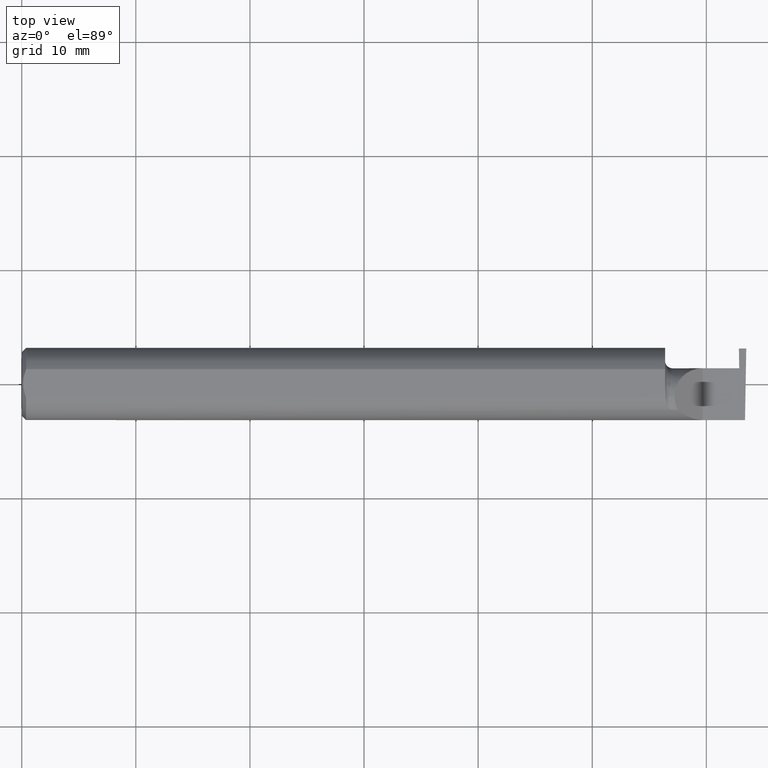
[diagram: clean part render]
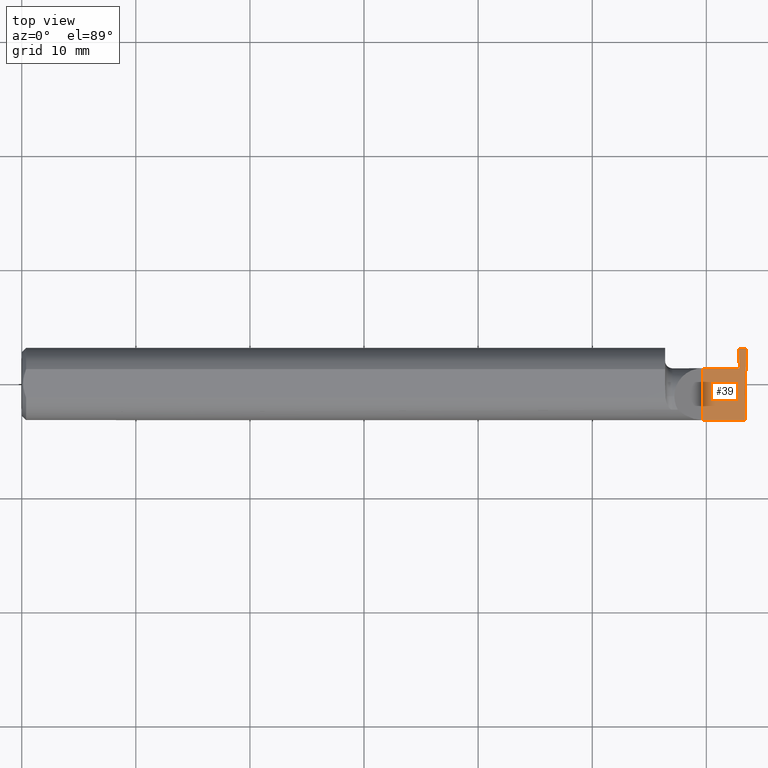
[diagram: same view with one face highlighted and labeled with its STEP entity id]
A machine part, top view. The second image highlights one B-rep face of the part: STEP entity #39.
In plain terms, the highlighted planar face has unit normal (-0, 0, -1).
Its self-contained STEP definition (entity closure, byte-faithful):
#12 = VERTEX_POINT ( 'NONE', #109 ) ;
#25 = DIRECTION ( 'NONE',  ( 1.000000000000000000, 0.000000000000000000, 0.000000000000000000 ) ) ;
#26 = ORIENTED_EDGE ( 'NONE', *, *, #778, .F. ) ;
#33 = DIRECTION ( 'NONE',  ( -0.000000000000000000, 1.000000000000000000, -0.000000000000000000 ) ) ;
#39 = ADVANCED_FACE ( 'NONE', ( #481 ), #469, .F. ) ;
#50 = VECTOR ( 'NONE', #300, 39.37007874015748854 ) ;
#60 = CARTESIAN_POINT ( 'NONE',  ( 2.494380489674781209, -0.1999019447116721915, 6.881915332554903690E-19 ) ) ;
#62 = CARTESIAN_POINT ( 'NONE',  ( 2.500000000000000444, 0.1221499999999999808, 1.947508823608312588E-17 ) ) ;
#89 = EDGE_CURVE ( 'NONE', #559, #425, #421, .T. ) ;
#109 = CARTESIAN_POINT ( 'NONE',  ( 2.350000000000000089, 0.05414999999999988572, 1.836970198721028825E-17 ) ) ;
#120 = DIRECTION ( 'NONE',  ( -1.224646799147352221E-16, 0.000000000000000000, -1.000000000000000000 ) ) ;
#157 = LINE ( 'NONE', #403, #316 ) ;
#171 = LINE ( 'NONE', #496, #367 ) ;
#190 = VECTOR ( 'NONE', #463, 39.37007874015748143 ) ;
#196 = ORIENTED_EDGE ( 'NONE', *, *, #401, .F. ) ;
#217 = LINE ( 'NONE', #534, #432 ) ;
#219 = DIRECTION ( 'NONE',  ( -1.000000000000000000, 1.290958279323718807E-16, 1.224646799147352221E-16 ) ) ;
#237 = EDGE_CURVE ( 'NONE', #550, #258, #457, .T. ) ;
#238 = CARTESIAN_POINT ( 'NONE',  ( 2.474499999999999922, 0.1221499999999999808, -3.306546357697866753E-19 ) ) ;
#258 = VERTEX_POINT ( 'NONE', #599 ) ;
#279 = CARTESIAN_POINT ( 'NONE',  ( 2.474499999999999922, 0.05415000000000001062, 3.429016444442839995E-17 ) ) ;
#294 = EDGE_CURVE ( 'NONE', #258, #465, #217, .T. ) ;
#300 = DIRECTION ( 'NONE',  ( 0.01744642479411464761, 0.9998477995484629233, -2.135106780035675284E-18 ) ) ;
#309 = EDGE_CURVE ( 'NONE', #559, #612, #157, .T. ) ;
#316 = VECTOR ( 'NONE', #652, 39.37007874015748143 ) ;
#335 = ORIENTED_EDGE ( 'NONE', *, *, #89, .T. ) ;
#350 = LINE ( 'NONE', #575, #703 ) ;
#353 = CARTESIAN_POINT ( 'NONE',  ( 2.500000000000000000, -0.2000000000000000111, 0.000000000000000000 ) ) ;
#359 = DIRECTION ( 'NONE',  ( 1.000000000000000000, -0.000000000000000000, -0.000000000000000000 ) ) ;
#367 = VECTOR ( 'NONE', #359, 39.37007874015748143 ) ;
#401 = EDGE_CURVE ( 'NONE', #550, #425, #171, .T. ) ;
#403 = CARTESIAN_POINT ( 'NONE',  ( 3.749399456654637998E-32, -0.1248500000000000026, 3.061616997868380676E-16 ) ) ;
#404 = CARTESIAN_POINT ( 'NONE',  ( 2.495690077103728921, -0.1248499999950965084, 1.733801157256528502E-17 ) ) ;
#421 = LINE ( 'NONE', #60, #50 ) ;
#425 = VERTEX_POINT ( 'NONE', #62 ) ;
#432 = VECTOR ( 'NONE', #219, 39.37007874015748143 ) ;
#449 = EDGE_CURVE ( 'NONE', #612, #12, #455, .T. ) ;
#452 = ORIENTED_EDGE ( 'NONE', *, *, #309, .F. ) ;
#455 = LINE ( 'NONE', #707, #459 ) ;
#457 = LINE ( 'NONE', #591, #190 ) ;
#459 = VECTOR ( 'NONE', #33, 39.37007874015748143 ) ;
#463 = DIRECTION ( 'NONE',  ( 0.01742050049977532378, -0.9998482515673753346, -2.130797594924658404E-18 ) ) ;
#465 = VERTEX_POINT ( 'NONE', #279 ) ;
#469 = PLANE ( 'NONE',  #715 ) ;
#481 = FACE_OUTER_BOUND ( 'NONE', #618, .T. ) ;
#496 = CARTESIAN_POINT ( 'NONE',  ( 2.399999999999999911, 0.1221499999999999808, -3.306546357697866753E-19 ) ) ;
#530 = ORIENTED_EDGE ( 'NONE', *, *, #449, .F. ) ;
#534 = CARTESIAN_POINT ( 'NONE',  ( 2.500000000000000000, 0.05415000000000002450, -4.018029980387587588E-33 ) ) ;
#550 = VERTEX_POINT ( 'NONE', #238 ) ;
#559 = VERTEX_POINT ( 'NONE', #404 ) ;
#575 = CARTESIAN_POINT ( 'NONE',  ( 2.220000000000000195, 0.05414999999999998981, 3.429011037612586318E-17 ) ) ;
#591 = CARTESIAN_POINT ( 'NONE',  ( 2.480118901204498627, -0.2003463912558332838, 2.434732400344322502E-18 ) ) ;
#599 = CARTESIAN_POINT ( 'NONE',  ( 2.475684773821554607, 0.05415000000000001062, 1.488878195498846573E-18 ) ) ;
#606 = DIRECTION ( 'NONE',  ( -1.000000000000000000, 0.000000000000000000, 1.224646799147352221E-16 ) ) ;
#612 = VERTEX_POINT ( 'NONE', #616 ) ;
#616 = CARTESIAN_POINT ( 'NONE',  ( 2.350000000000000089, -0.1248500000000000026, 1.836970198721028825E-17 ) ) ;
#618 = EDGE_LOOP ( 'NONE', ( #452, #335, #196, #733, #745, #26, #530 ) ) ;
#652 = DIRECTION ( 'NONE',  ( -1.000000000000000000, -0.000000000000000000, -0.000000000000000000 ) ) ;
#703 = VECTOR ( 'NONE', #25, 39.37007874015748143 ) ;
#707 = CARTESIAN_POINT ( 'NONE',  ( 2.350000000000000089, -0.2000000000000000111, 1.836970198721028825E-17 ) ) ;
#715 = AXIS2_PLACEMENT_3D ( 'NONE', #353, #120, #606 ) ;
#733 = ORIENTED_EDGE ( 'NONE', *, *, #237, .T. ) ;
#745 = ORIENTED_EDGE ( 'NONE', *, *, #294, .T. ) ;
#778 = EDGE_CURVE ( 'NONE', #12, #465, #350, .T. ) ;